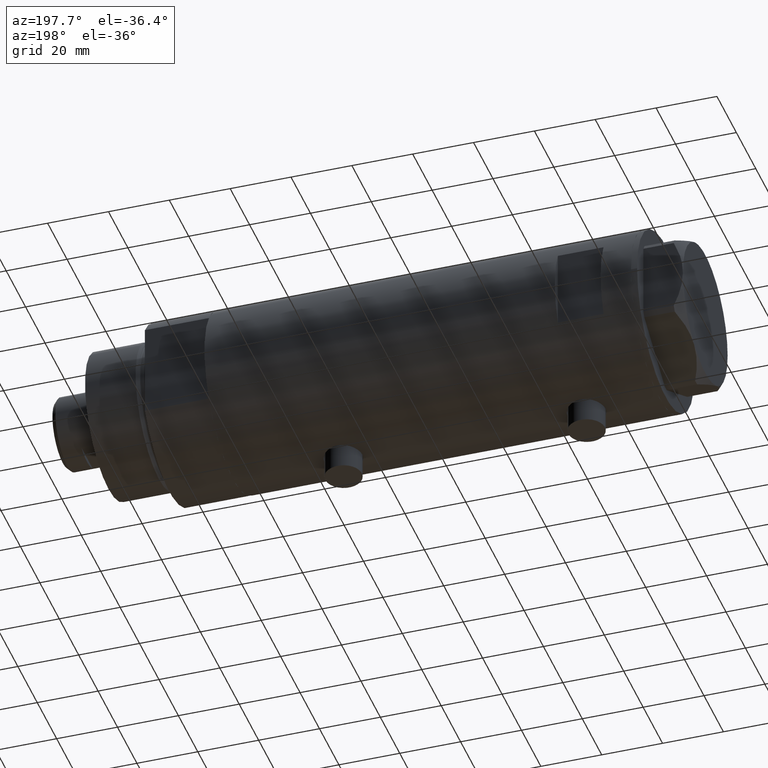
[diagram: clean part render]
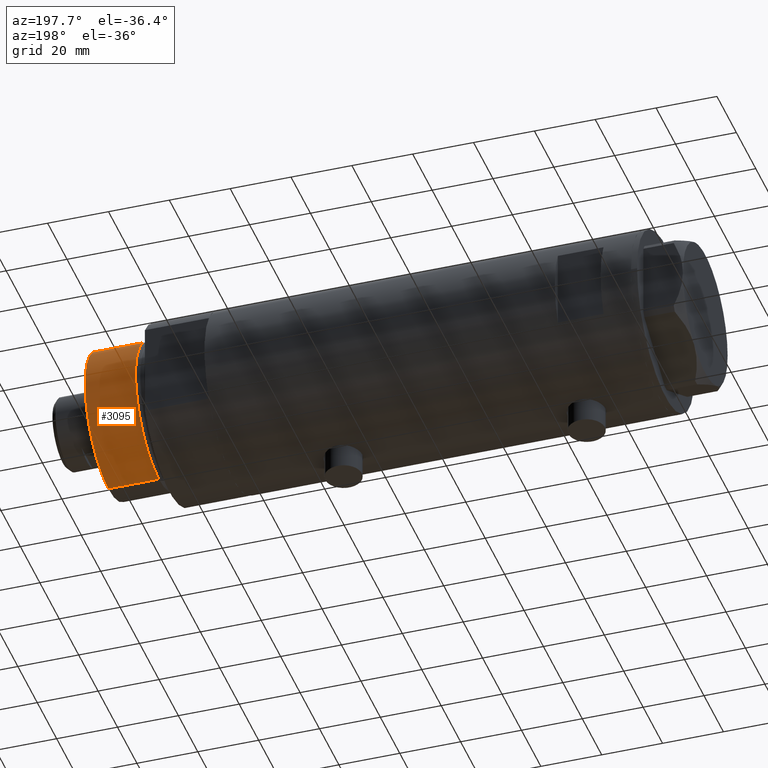
[diagram: same view with one face highlighted and labeled with its STEP entity id]
A machine part, auxiliary view. The second image highlights one B-rep face of the part: STEP entity #3095.
In plain terms, the highlighted cylindrical surface (partial cylindrical patch) has radius 24 mm, axis along (-1, -0, 0).
Its self-contained STEP definition (entity closure, byte-faithful):
#21 = AXIS2_PLACEMENT_3D ( 'NONE', #316, #2402, #29 ) ;
#29 = DIRECTION ( 'NONE',  ( 1.000000000000000000, 0.000000000000000000, 0.000000000000000000 ) ) ;
#33 = DIRECTION ( 'NONE',  ( 1.000000000000000000, 0.000000000000000000, 0.000000000000000000 ) ) ;
#155 = CARTESIAN_POINT ( 'NONE',  ( -24.00000000000000355, 0.000000000000000000, 41.00000000000000000 ) ) ;
#172 = CARTESIAN_POINT ( 'NONE',  ( 0.000000000000000000, 0.000000000000000000, 41.00000000000000000 ) ) ;
#233 = VERTEX_POINT ( 'NONE', #2543 ) ;
#316 = CARTESIAN_POINT ( 'NONE',  ( 0.000000000000000000, 0.000000000000000000, 41.00000000000000000 ) ) ;
#427 = DIRECTION ( 'NONE',  ( -0.000000000000000000, -0.000000000000000000, -1.000000000000000000 ) ) ;
#775 = DIRECTION ( 'NONE',  ( -0.000000000000000000, -0.000000000000000000, -1.000000000000000000 ) ) ;
#886 = FACE_OUTER_BOUND ( 'NONE', #958, .T. ) ;
#936 = CYLINDRICAL_SURFACE ( 'NONE', #1710, 24.00000000000000355 ) ;
#950 = ORIENTED_EDGE ( 'NONE', *, *, #2822, .F. ) ;
#958 = EDGE_LOOP ( 'NONE', ( #950, #4407, #3255, #1611 ) ) ;
#1180 = CARTESIAN_POINT ( 'NONE',  ( -24.00000000000000355, 0.000000000000000000, 41.00000000000000000 ) ) ;
#1303 = DIRECTION ( 'NONE',  ( -1.000000000000000000, 0.000000000000000000, 0.000000000000000000 ) ) ;
#1359 = EDGE_CURVE ( 'NONE', #4147, #233, #3195, .T. ) ;
#1611 = ORIENTED_EDGE ( 'NONE', *, *, #2536, .F. ) ;
#1710 = AXIS2_PLACEMENT_3D ( 'NONE', #172, #3721, #1303 ) ;
#2402 = DIRECTION ( 'NONE',  ( 0.000000000000000000, 0.000000000000000000, 1.000000000000000000 ) ) ;
#2536 = EDGE_CURVE ( 'NONE', #3633, #233, #4217, .T. ) ;
#2543 = CARTESIAN_POINT ( 'NONE',  ( -24.00000000000000355, 0.000000000000000000, 24.37384048104054557 ) ) ;
#2571 = CARTESIAN_POINT ( 'NONE',  ( 24.00000000000000355, 2.939152317953648289E-15, 41.00000000000000000 ) ) ;
#2822 = EDGE_CURVE ( 'NONE', #3823, #3633, #2850, .T. ) ;
#2850 = CIRCLE ( 'NONE', #21, 24.00000000000000355 ) ;
#2967 = EDGE_CURVE ( 'NONE', #3823, #4147, #3908, .T. ) ;
#3095 = ADVANCED_FACE ( 'NONE', ( #886 ), #936, .T. ) ;
#3147 = DIRECTION ( 'NONE',  ( -0.000000000000000000, -0.000000000000000000, 1.000000000000000000 ) ) ;
#3160 = CARTESIAN_POINT ( 'NONE',  ( 24.00000000000000355, 2.939152317953648289E-15, 41.00000000000000000 ) ) ;
#3195 = CIRCLE ( 'NONE', #3830, 24.00000000000000355 ) ;
#3255 = ORIENTED_EDGE ( 'NONE', *, *, #1359, .T. ) ;
#3471 = CARTESIAN_POINT ( 'NONE',  ( 0.000000000000000000, 0.000000000000000000, 24.37384048104054557 ) ) ;
#3487 = VECTOR ( 'NONE', #775, 1000.000000000000000 ) ;
#3573 = CARTESIAN_POINT ( 'NONE',  ( 24.00000000000000355, 2.939152317953648289E-15, 24.37384048104054557 ) ) ;
#3633 = VERTEX_POINT ( 'NONE', #1180 ) ;
#3721 = DIRECTION ( 'NONE',  ( -0.000000000000000000, -0.000000000000000000, -1.000000000000000000 ) ) ;
#3823 = VERTEX_POINT ( 'NONE', #3160 ) ;
#3830 = AXIS2_PLACEMENT_3D ( 'NONE', #3471, #3147, #33 ) ;
#3908 = LINE ( 'NONE', #2571, #3487 ) ;
#4058 = VECTOR ( 'NONE', #427, 1000.000000000000000 ) ;
#4147 = VERTEX_POINT ( 'NONE', #3573 ) ;
#4217 = LINE ( 'NONE', #155, #4058 ) ;
#4407 = ORIENTED_EDGE ( 'NONE', *, *, #2967, .T. ) ;